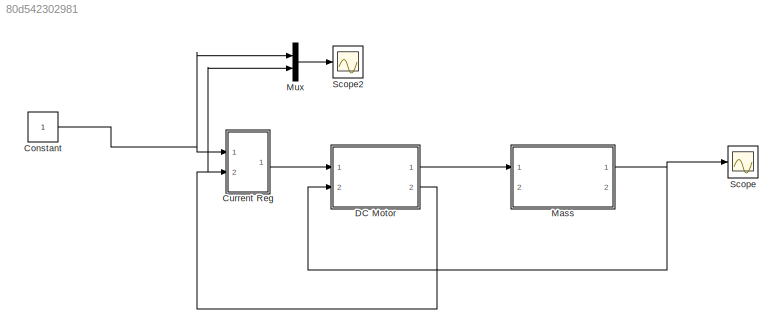
MODEL slx_80d542302981
KIND model
CONFIG AbsTol = auto
CONFIG EnableMultiTasking = off
CONFIG FixedStep = To/100
CONFIG MaxStep = auto
CONFIG MinStep = auto
CONFIG RelTol = 1e-3
CONFIG SampleTimeConstraint = Unconstrained
CONFIG SolverName = ode3
CONFIG StartTime = 0.0
CONFIG StopTime = Tmdl
BLOCK [Constant] Constant
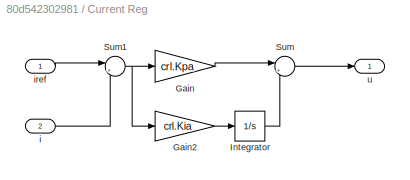
BLOCK [SubSystem] Current Reg
  Ports = [2, 1]
  RequestExecContextInheritance = off
BLOCK [Gain] Current Reg/Gain
  Gain = crl.Kpa
BLOCK [Gain] Current Reg/Gain2
  Gain = crl.Kia
BLOCK [Integrator] Current Reg/Integrator
  Ports = [1, 1]
BLOCK [Sum] Current Reg/Sum
  Inputs = |++
  Ports = [2, 1]
BLOCK [Sum] Current Reg/Sum1
  Inputs = |+-
  Ports = [2, 1]
BLOCK [Inport] Current Reg/i
  Port = 2
BLOCK [Inport] Current Reg/iref
BLOCK [Outport] Current Reg/u
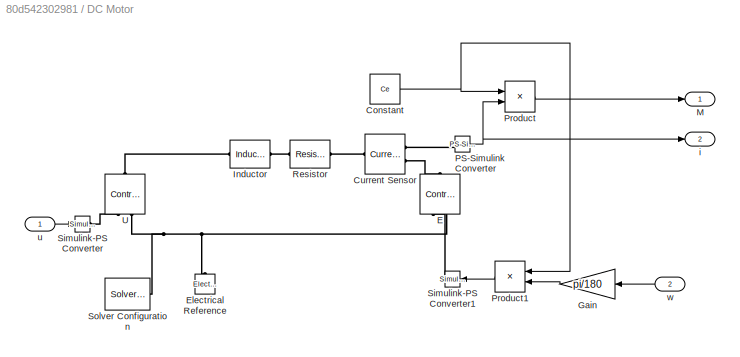
BLOCK [SubSystem] DC Motor
  Ports = [2, 2]
  RequestExecContextInheritance = off
BLOCK [Constant] DC Motor/Constant
  Value = Ce
BLOCK [Reference] DC Motor/Current Sensor  REF=fl_lib/Electrical/Electrical Sensors/Current Sensor
  Ports = [0, 0, 0, 0, 0, 1, 2]
  SourceBlock = fl_lib/Electrical/Electrical Sensors/Current Sensor
  SourceProductBaseCode = PW,SS,VE
  SourceType = Current Sensor
BLOCK [Reference] DC Motor/E  REF=fl_lib/Electrical/Electrical Sources/Controlled Voltage
Source
  NameLocation = right
  Ports = [0, 0, 0, 0, 0, 1, 2]
  SourceBlock = fl_lib/Electrical/Electrical Sources/Controlled Voltage\nSource
  SourceProductBaseCode = PW,SS,VE
  SourceType = Controlled Voltage\nSource
BLOCK [Reference] DC Motor/Electrical Reference  REF=fl_lib/Electrical/Electrical Elements/Electrical Reference
  NameLocation = right
  Ports = [0, 0, 0, 0, 0, 1]
  SourceBlock = fl_lib/Electrical/Electrical Elements/Electrical Reference
  SourceProductBaseCode = PW,SS,VE
  SourceType = Electrical Reference
BLOCK [Gain] DC Motor/Gain
  Gain = pi/180
  NameLocation = top
BLOCK [Reference] DC Motor/Inductor  REF=fl_lib/Electrical/Electrical Elements/Inductor
  Ports = [0, 0, 0, 0, 0, 1, 1]
  SourceBlock = fl_lib/Electrical/Electrical Elements/Inductor
  SourceProductBaseCode = PW,SS,VE
  SourceType = Inductor
BLOCK [Outport] DC Motor/M
BLOCK [Reference] DC Motor/PS-Simulink Converter  REF=nesl_utility/PS-Simulink
Converter
  Ports = [0, 1, 0, 0, 0, 1]
  SourceBlock = nesl_utility/PS-Simulink\nConverter
  SourceProductBaseCode = SS,PW,VE
  SourceType = PS-Simulink\nConverter
BLOCK [Product] DC Motor/Product
  Ports = [2, 1]
BLOCK [Product] DC Motor/Product1
  NameLocation = top
  Ports = [2, 1]
BLOCK [Reference] DC Motor/Resistor  REF=fl_lib/Electrical/Electrical Elements/Resistor
  Ports = [0, 0, 0, 0, 0, 1, 1]
  SourceBlock = fl_lib/Electrical/Electrical Elements/Resistor
  SourceProductBaseCode = PW,SS,VE
  SourceType = Resistor
BLOCK [Reference] DC Motor/Simulink-PS Converter  REF=nesl_utility/Simulink-PS
Converter
  Ports = [1, 0, 0, 0, 0, 0, 1]
  SourceBlock = nesl_utility/Simulink-PS\nConverter
  SourceProductBaseCode = SS,PW,VE
  SourceType = Simulink-PS\nConverter
BLOCK [Reference] DC Motor/Simulink-PS Converter1  REF=nesl_utility/Simulink-PS
Converter
  NameLocation = top
  Ports = [1, 0, 0, 0, 0, 0, 1]
  SourceBlock = nesl_utility/Simulink-PS\nConverter
  SourceProductBaseCode = SS,PW,VE
  SourceType = Simulink-PS\nConverter
BLOCK [Reference] DC Motor/Solver Configuration  REF=nesl_utility/Solver
Configuration
  Ports = [0, 0, 0, 0, 0, 0, 1]
  SourceBlock = nesl_utility/Solver\nConfiguration
  SourceProductBaseCode = SS,PW,VE
  SourceType = Solver\nConfiguration
BLOCK [Reference] DC Motor/U  REF=fl_lib/Electrical/Electrical Sources/Controlled Voltage
Source
  NameLocation = right
  Ports = [0, 0, 0, 0, 0, 1, 2]
  SourceBlock = fl_lib/Electrical/Electrical Sources/Controlled Voltage\nSource
  SourceProductBaseCode = PW,SS,VE
  SourceType = Controlled Voltage\nSource
BLOCK [Outport] DC Motor/i
  Port = 2
BLOCK [Inport] DC Motor/u
BLOCK [Inport] DC Motor/w
  Port = 2
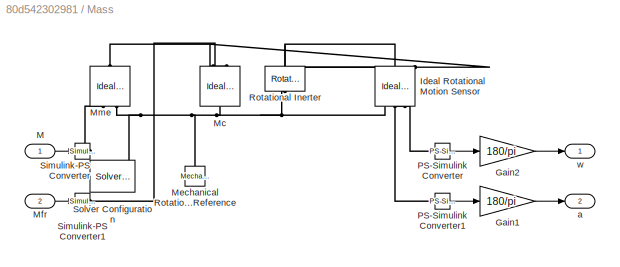
BLOCK [SubSystem] Mass
  Ports = [2, 2]
  RequestExecContextInheritance = off
BLOCK [Gain] Mass/Gain1
  Gain = 180/pi
BLOCK [Gain] Mass/Gain2
  Gain = 180/pi
BLOCK [Reference] Mass/Ideal Rotational Motion Sensor  REF=fl_lib/Mechanical/Mechanical Sensors/Ideal Rotational
Motion Sensor
  NameLocation = left
  Ports = [0, 0, 0, 0, 0, 1, 3]
  SourceBlock = fl_lib/Mechanical/Mechanical Sensors/Ideal Rotational\nMotion Sensor
  SourceProductBaseCode = PW,SS,VE
  SourceType = Ideal Rotational\nMotion Sensor
BLOCK [Inport] Mass/M
BLOCK [Reference] Mass/Mc  REF=fl_lib/Mechanical/Mechanical Sources/Ideal Torque Source
  NameLocation = left
  Ports = [0, 0, 0, 0, 0, 1, 2]
  SourceBlock = fl_lib/Mechanical/Mechanical Sources/Ideal Torque Source
  SourceProductBaseCode = PW,SS,VE
  SourceType = Ideal Torque Source
BLOCK [Reference] Mass/Mechanical Rotational Reference  REF=fl_lib/Mechanical/Rotational Elements/Mechanical
Rotational Reference
  NameLocation = right
  Ports = [0, 0, 0, 0, 0, 1]
  SourceBlock = fl_lib/Mechanical/Rotational Elements/Mechanical\nRotational Reference
  SourceProductBaseCode = PW,SS,VE
  SourceType = Mechanical\nRotational Reference
BLOCK [Inport] Mass/Mfr
  Port = 2
BLOCK [Reference] Mass/Mme  REF=fl_lib/Mechanical/Mechanical Sources/Ideal Torque Source
  NameLocation = right
  Ports = [0, 0, 0, 0, 0, 1, 2]
  SourceBlock = fl_lib/Mechanical/Mechanical Sources/Ideal Torque Source
  SourceProductBaseCode = PW,SS,VE
  SourceType = Ideal Torque Source
BLOCK [Reference] Mass/PS-Simulink Converter  REF=nesl_utility/PS-Simulink
Converter
  Ports = [0, 1, 0, 0, 0, 1]
  SourceBlock = nesl_utility/PS-Simulink\nConverter
  SourceProductBaseCode = SS,PW,VE
  SourceType = PS-Simulink\nConverter
BLOCK [Reference] Mass/PS-Simulink Converter1  REF=nesl_utility/PS-Simulink
Converter
  Ports = [0, 1, 0, 0, 0, 1]
  SourceBlock = nesl_utility/PS-Simulink\nConverter
  SourceProductBaseCode = SS,PW,VE
  SourceType = PS-Simulink\nConverter
BLOCK [Reference] Mass/Rotational Inerter  REF=fl_lib/Mechanical/Rotational Elements/Rotational Inerter
  NameLocation = left
  Ports = [0, 0, 0, 0, 0, 1, 1]
  SourceBlock = fl_lib/Mechanical/Rotational Elements/Rotational Inerter
  SourceProductBaseCode = PW,SS,VE
  SourceType = Rotational Inerter
BLOCK [Reference] Mass/Simulink-PS Converter  REF=nesl_utility/Simulink-PS
Converter
  Ports = [1, 0, 0, 0, 0, 0, 1]
  SourceBlock = nesl_utility/Simulink-PS\nConverter
  SourceProductBaseCode = SS,PW,VE
  SourceType = Simulink-PS\nConverter
BLOCK [Reference] Mass/Simulink-PS Converter1  REF=nesl_utility/Simulink-PS
Converter
  Ports = [1, 0, 0, 0, 0, 0, 1]
  SourceBlock = nesl_utility/Simulink-PS\nConverter
  SourceProductBaseCode = SS,PW,VE
  SourceType = Simulink-PS\nConverter
BLOCK [Reference] Mass/Solver Configuration  REF=nesl_utility/Solver
Configuration
  Ports = [0, 0, 0, 0, 0, 0, 1]
  SourceBlock = nesl_utility/Solver\nConfiguration
  SourceProductBaseCode = SS,PW,VE
  SourceType = Solver\nConfiguration
BLOCK [Outport] Mass/a
  Port = 2
BLOCK [Outport] Mass/w
BLOCK [Mux] Mux
  DisplayOption = bar
  Inputs = 2
  Ports = [2, 1]
BLOCK [Scope] Scope
  Floating = off
  NumInputPorts = 1
  Ports = [1]
  ScopeSpecificationString = Simulink.scopes.TimeScopeBlockCfg('CurrentConfiguration', extmgr.ConfigurationSet(extmgr.Configuration('Core','General UI',true),extmgr.Configuration('Core','Source UI',true),extmgr.Configuration('Sources','WiredSimulink',true),extmgr.Configuration('Visuals','Time Domain',true,'SerializedDisplays',{struct('MinYLimReal','-0.15558','MaxYLimReal','1.4002','YLabelReal','','MinYLimMag','0.00000','MaxYL...<+1465ch>
BLOCK [Scope] Scope2
  Floating = off
  NumInputPorts = 1
  Ports = [1]
  ScopeSpecificationString = Simulink.scopes.TimeScopeBlockCfg('CurrentConfiguration', extmgr.ConfigurationSet(extmgr.Configuration('Core','General UI',true),extmgr.Configuration('Core','Source UI',true),extmgr.Configuration('Sources','WiredSimulink',true,'DataLoggingVariableName','ia','DataLogging',true,'DataLoggingSaveFormat','Array'),extmgr.Configuration('Visuals','Time Domain',true,'SerializedDisplays',{struct('MinYLimRea...<+1591ch>
NET Constant:1 -> Current Reg:1, Mux:1
LINE Current Reg/Gain2:1 -> Current Reg/Integrator:1
LINE Current Reg/Gain:1 -> Current Reg/Sum:1
LINE Current Reg/Integrator:1 -> Current Reg/Sum:2
NET Current Reg/Sum1:1 -> Current Reg/Gain2:1, Current Reg/Gain:1
LINE Current Reg/Sum:1 -> Current Reg/u:1
LINE Current Reg/i:1 -> Current Reg/Sum1:2
LINE Current Reg/iref:1 -> Current Reg/Sum1:1
LINE Current Reg:1 -> DC Motor:1
NET DC Motor/Constant:1 -> DC Motor/Product1:1, DC Motor/Product:1
LINE DC Motor/Gain:1 -> DC Motor/Product1:2
NET DC Motor/PS-Simulink Converter:1 -> DC Motor/Product:2, DC Motor/i:1
LINE DC Motor/Product1:1 -> DC Motor/Simulink-PS Converter1:1
LINE DC Motor/Product:1 -> DC Motor/M:1
LINE DC Motor/u:1 -> DC Motor/Simulink-PS Converter:1
LINE DC Motor/w:1 -> DC Motor/Gain:1
LINE DC Motor:1 -> Mass:1
NET DC Motor:2 -> Current Reg:2, Mux:2
LINE Mass/Gain1:1 -> Mass/a:1
LINE Mass/Gain2:1 -> Mass/w:1
LINE Mass/M:1 -> Mass/Simulink-PS Converter:1
LINE Mass/Mfr:1 -> Mass/Simulink-PS Converter1:1
LINE Mass/PS-Simulink Converter1:1 -> Mass/Gain1:1
LINE Mass/PS-Simulink Converter:1 -> Mass/Gain2:1
NET Mass:1 -> DC Motor:2, Scope:1
LINE Mux:1 -> Scope2:1
PLINE DC Motor/Current Sensor:LConn1 -- DC Motor/Resistor:RConn1
PLINE DC Motor/Current Sensor:RConn1 -- DC Motor/PS-Simulink Converter:LConn1
PLINE DC Motor/Current Sensor:RConn2 -- DC Motor/E:LConn1
PLINE DC Motor/E:RConn1 -- DC Motor/Simulink-PS Converter1:RConn1
PNET net1: DC Motor/E:RConn2 -- DC Motor/Electrical Reference:LConn1 -- DC Motor/Solver Configuration:RConn1 -- DC Motor/U:RConn2
PLINE DC Motor/Inductor:LConn1 -- DC Motor/U:LConn1
PLINE DC Motor/Inductor:RConn1 -- DC Motor/Resistor:LConn1
PLINE DC Motor/Simulink-PS Converter:RConn1 -- DC Motor/U:RConn1
PNET net2: Mass/Ideal Rotational Motion Sensor:LConn1 -- Mass/Mc:RConn2 -- Mass/Mme:LConn1 -- Mass/Rotational Inerter:LConn1
PNET net3: Mass/Ideal Rotational Motion Sensor:RConn1 -- Mass/Mc:LConn1 -- Mass/Mechanical Rotational Reference:LConn1 -- Mass/Mme:RConn2 -- Mass/Rotational Inerter:RConn1 -- Mass/Solver Configuration:RConn1
PLINE Mass/Ideal Rotational Motion Sensor:RConn2 -- Mass/PS-Simulink Converter:LConn1
PLINE Mass/Ideal Rotational Motion Sensor:RConn3 -- Mass/PS-Simulink Converter1:LConn1
PLINE Mass/Mc:RConn1 -- Mass/Simulink-PS Converter1:RConn1
PLINE Mass/Mme:RConn1 -- Mass/Simulink-PS Converter:RConn1
note: NET lines group one-source signal fan-out (src -> all destinations, sorted); 1:1 wires keep LINE; PNET lines group multi-terminal physical nets as a canonical sorted terminal list (undirected conserving connections); 2-terminal nets keep the pairwise PLINE form
